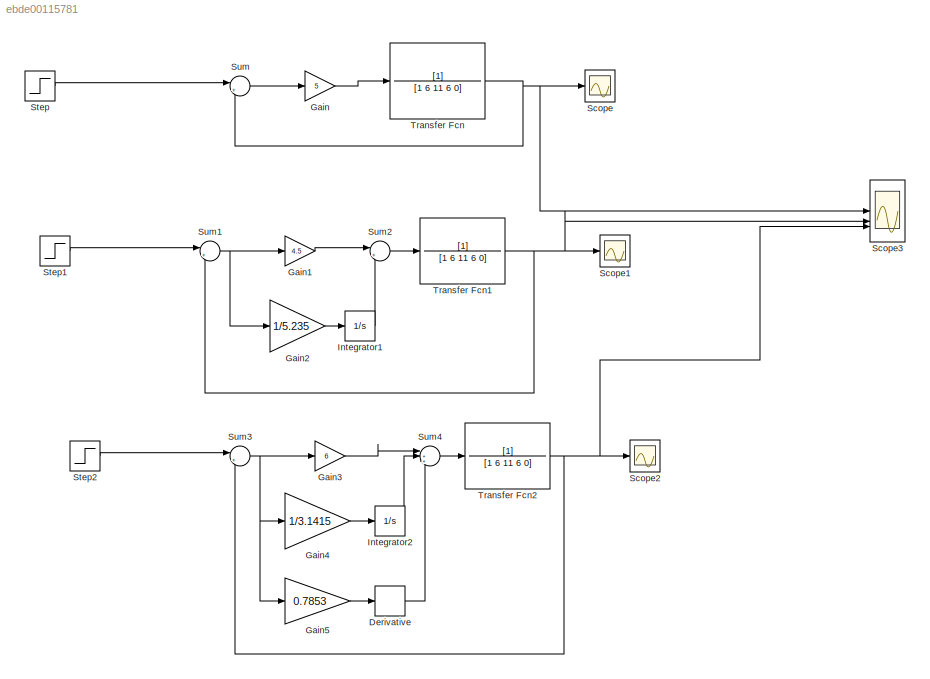
MODEL slx_ebde00115781
KIND model
CONFIG AbsTol = auto
CONFIG EnableMultiTasking = on
CONFIG FixedStep = auto
CONFIG MaxStep = auto
CONFIG MinStep = auto
CONFIG RelTol = 1e-3
CONFIG SampleTimeConstraint = Unconstrained
CONFIG SolverName = FixedStepAuto
CONFIG StartTime = 0.0
CONFIG StopTime = 50
BLOCK [Derivative] Derivative
BLOCK [Gain] Gain
  Gain = 5
BLOCK [Gain] Gain1
  Gain = 4.5
BLOCK [Gain] Gain2
  Gain = 1/5.235
BLOCK [Gain] Gain3
  Gain = 6
BLOCK [Gain] Gain4
  Gain = 1/3.1415
BLOCK [Gain] Gain5
  Gain = 0.7853
BLOCK [Integrator] Integrator1
BLOCK [Integrator] Integrator2
BLOCK [Scope] Scope
  Floating = off
  NumInputPorts = 1
  ScopeSpecificationString = Simulink.scopes.TimeScopeBlockCfg('CurrentConfiguration', extmgr.ConfigurationSet(extmgr.Configuration('Core','General UI',true),extmgr.Configuration('Core','Source UI',true),extmgr.Configuration('Sources','WiredSimulink',true,'DataLoggingLimitDataPoints',true,'DataLoggingSaveFormat','Array','DataLoggingDecimation','1','DataLoggingDecimateData',true),extmgr.Configuration('Visuals','Time Domain',tr...<+859ch>
BLOCK [Scope] Scope1
  Floating = off
  NumInputPorts = 1
  ScopeSpecificationString = C++SS(StrPVP('Location','[1, 60, 1827, 1079]'),StrPVP('Open','off'),MxPVP('AxesTitles',54,'struct(''axes1'',''%<SignalLabel>'')'),MxPVP('ScopeGraphics',57,'struct(''FigureColor'',''[0.5 0.5 0.5]'',''AxesColor'',''[0 0 0]'',''AxesTickColor'',''[1 1 1]'',''LineColors'',''[1 1 0;1 0 1;0 1 1;1 0 0;0 1 0;0 0 1]'',''LineStyles'',''-|-|-|-|-|-'',''LineWidths'',''[0.5 0.5 0.5 0.5 0.5 0.5]'',''MarkerStyles...<+195ch>
BLOCK [Scope] Scope2
  Floating = off
  NumInputPorts = 1
  ScopeSpecificationString = C++SS(StrPVP('Location','[1, 60, 1827, 1079]'),StrPVP('Open','off'),MxPVP('AxesTitles',54,'struct(''axes1'',''%<SignalLabel>'')'),MxPVP('ScopeGraphics',57,'struct(''FigureColor'',''[0.5 0.5 0.5]'',''AxesColor'',''[0 0 0]'',''AxesTickColor'',''[1 1 1]'',''LineColors'',''[1 1 0;1 0 1;0 1 1;1 0 0;0 1 0;0 0 1]'',''LineStyles'',''-|-|-|-|-|-'',''LineWidths'',''[0.5 0.5 0.5 0.5 0.5 0.5]'',''MarkerStyles...<+195ch>
BLOCK [Scope] Scope3
  Floating = off
  NumInputPorts = 3
  ScopeSpecificationString = Simulink.scopes.TimeScopeBlockCfg('CurrentConfiguration', extmgr.ConfigurationSet(extmgr.Configuration('Core','General UI',true),extmgr.Configuration('Core','Source UI',true),extmgr.Configuration('Sources','WiredSimulink',true,'DataLoggingVariableName','ScopeData3','DataLoggingLimitDataPoints',true,'DataLoggingSaveFormat','Array','DataLoggingDecimation','1','DataLoggingDecimateData',true),extmgr.C...<+3002ch>
BLOCK [Step] Step
  SampleTime = 0
BLOCK [Step] Step1
  SampleTime = 0
BLOCK [Step] Step2
  SampleTime = 0
BLOCK [Sum] Sum
  Inputs = |+-
BLOCK [Sum] Sum1
  Inputs = |+-
BLOCK [Sum] Sum2
  Inputs = |++
BLOCK [Sum] Sum3
  Inputs = |+-
BLOCK [Sum] Sum4
  Inputs = |+++
BLOCK [TransferFcn] Transfer Fcn
  Denominator = [1 6 11 6 0]
BLOCK [TransferFcn] Transfer Fcn1
  Denominator = [1 6 11 6 0]
BLOCK [TransferFcn] Transfer Fcn2
  Denominator = [1 6 11 6 0]
LINE Derivative:1 -> Sum4:3
LINE Gain1:1 -> Sum2:1
LINE Gain2:1 -> Integrator1:1
LINE Gain3:1 -> Sum4:1
LINE Gain4:1 -> Integrator2:1
LINE Gain5:1 -> Derivative:1
LINE Gain:1 -> Transfer Fcn:1
LINE Integrator1:1 -> Sum2:2
LINE Integrator2:1 -> Sum4:2
LINE Step1:1 -> Sum1:1
LINE Step2:1 -> Sum3:1
LINE Step:1 -> Sum:1
NET Sum1:1 -> Gain1:1, Gain2:1
LINE Sum2:1 -> Transfer Fcn1:1
NET Sum3:1 -> Gain3:1, Gain4:1, Gain5:1
LINE Sum4:1 -> Transfer Fcn2:1
LINE Sum:1 -> Gain:1
NET Transfer Fcn1:1 -> Scope1:1, Scope3:2, Sum1:2
NET Transfer Fcn2:1 -> Scope2:1, Scope3:3, Sum3:2
NET Transfer Fcn:1 -> Scope3:1, Scope:1, Sum:2
note: NET lines group one-source signal fan-out (src -> all destinations, sorted); 1:1 wires keep LINE
